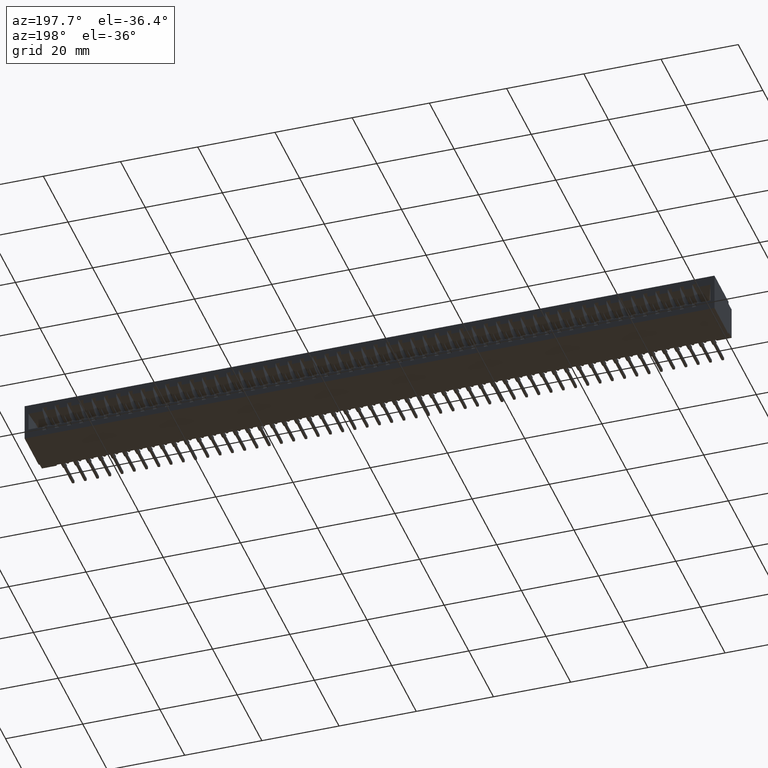
[diagram: clean part render]
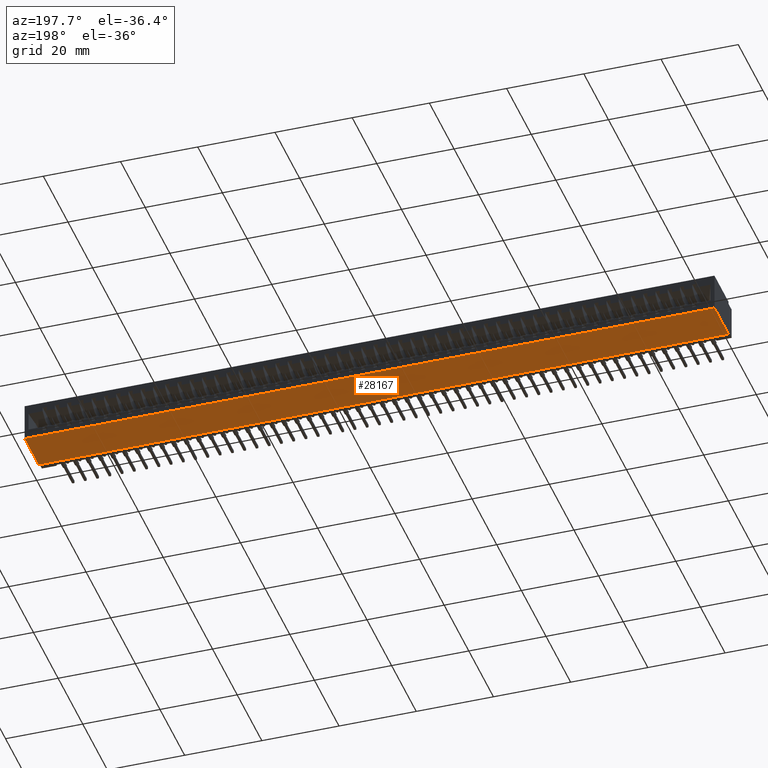
[diagram: same view with one face highlighted and labeled with its STEP entity id]
A machine part, auxiliary view. The second image highlights one B-rep face of the part: STEP entity #28167.
In plain terms, the highlighted planar face has unit normal (0, 0, 1).
Its self-contained STEP definition (entity closure, byte-faithful):
#4388 = ORIENTED_EDGE ( 'NONE', *, *, #32325, .F. ) ;
#5431 = ORIENTED_EDGE ( 'NONE', *, *, #66828, .T. ) ;
#6532 = LINE ( 'NONE', #67930, #53579 ) ;
#8342 = CARTESIAN_POINT ( 'NONE',  ( 7.034999999999999254, 0.5500000000000000444, -0.3900000000000000133 ) ) ;
#11235 = EDGE_CURVE ( 'NONE', #38714, #69570, #22120, .T. ) ;
#12357 = LINE ( 'NONE', #68480, #37539 ) ;
#12967 = VECTOR ( 'NONE', #58073, 39.37007874015748143 ) ;
#16021 = LINE ( 'NONE', #34599, #26630 ) ;
#19465 = DIRECTION ( 'NONE',  ( -0.0000000000000000000, -1.000000000000000000, -0.0000000000000000000 ) ) ;
#22120 = LINE ( 'NONE', #77485, #12967 ) ;
#23607 = DIRECTION ( 'NONE',  ( 1.000000000000000000, 0.0000000000000000000, -0.0000000000000000000 ) ) ;
#23758 = VERTEX_POINT ( 'NONE', #37910 ) ;
#24053 = VERTEX_POINT ( 'NONE', #63391 ) ;
#26630 = VECTOR ( 'NONE', #40640, 39.37007874015748143 ) ;
#28167 = ADVANCED_FACE ( 'NONE', ( #49450 ), #68404, .F. ) ;
#32325 = EDGE_CURVE ( 'NONE', #69570, #24053, #6532, .T. ) ;
#34599 = CARTESIAN_POINT ( 'NONE',  ( 7.034999999999999254, 0.1000000000000000056, -0.3900000000000000133 ) ) ;
#37539 = VECTOR ( 'NONE', #49120, 39.37007874015748143 ) ;
#37910 = CARTESIAN_POINT ( 'NONE',  ( 7.034999999999999254, 0.1000000000000000056, -0.3900000000000000133 ) ) ;
#38714 = VERTEX_POINT ( 'NONE', #8342 ) ;
#40573 = CARTESIAN_POINT ( 'NONE',  ( 0.0000000000000000000, 0.5500000000000000444, -0.3900000000000000133 ) ) ;
#40640 = DIRECTION ( 'NONE',  ( -1.000000000000000000, -0.0000000000000000000, -0.0000000000000000000 ) ) ;
#46744 = EDGE_LOOP ( 'NONE', ( #70520, #5431, #4388, #66221 ) ) ;
#49120 = DIRECTION ( 'NONE',  ( -0.0000000000000000000, -1.000000000000000000, -0.0000000000000000000 ) ) ;
#49450 = FACE_OUTER_BOUND ( 'NONE', #46744, .T. ) ;
#53579 = VECTOR ( 'NONE', #19465, 39.37007874015748143 ) ;
#55906 = CARTESIAN_POINT ( 'NONE',  ( 0.0000000000000000000, 0.5500000000000000444, -0.3900000000000000133 ) ) ;
#58073 = DIRECTION ( 'NONE',  ( -1.000000000000000000, -0.0000000000000000000, -0.0000000000000000000 ) ) ;
#60477 = EDGE_CURVE ( 'NONE', #38714, #23758, #12357, .T. ) ;
#63391 = CARTESIAN_POINT ( 'NONE',  ( 0.0000000000000000000, 0.1000000000000000056, -0.3900000000000000133 ) ) ;
#66221 = ORIENTED_EDGE ( 'NONE', *, *, #11235, .F. ) ;
#66828 = EDGE_CURVE ( 'NONE', #23758, #24053, #16021, .T. ) ;
#67607 = DIRECTION ( 'NONE',  ( 0.0000000000000000000, 0.0000000000000000000, 1.000000000000000000 ) ) ;
#67930 = CARTESIAN_POINT ( 'NONE',  ( 0.0000000000000000000, 0.5500000000000000444, -0.3900000000000000133 ) ) ;
#68207 = AXIS2_PLACEMENT_3D ( 'NONE', #55906, #67607, #23607 ) ;
#68404 = PLANE ( 'NONE',  #68207 ) ;
#68480 = CARTESIAN_POINT ( 'NONE',  ( 7.034999999999999254, 0.5500000000000000444, -0.3900000000000000133 ) ) ;
#69570 = VERTEX_POINT ( 'NONE', #40573 ) ;
#70520 = ORIENTED_EDGE ( 'NONE', *, *, #60477, .T. ) ;
#77485 = CARTESIAN_POINT ( 'NONE',  ( 0.0000000000000000000, 0.5500000000000000444, -0.3900000000000000133 ) ) ;